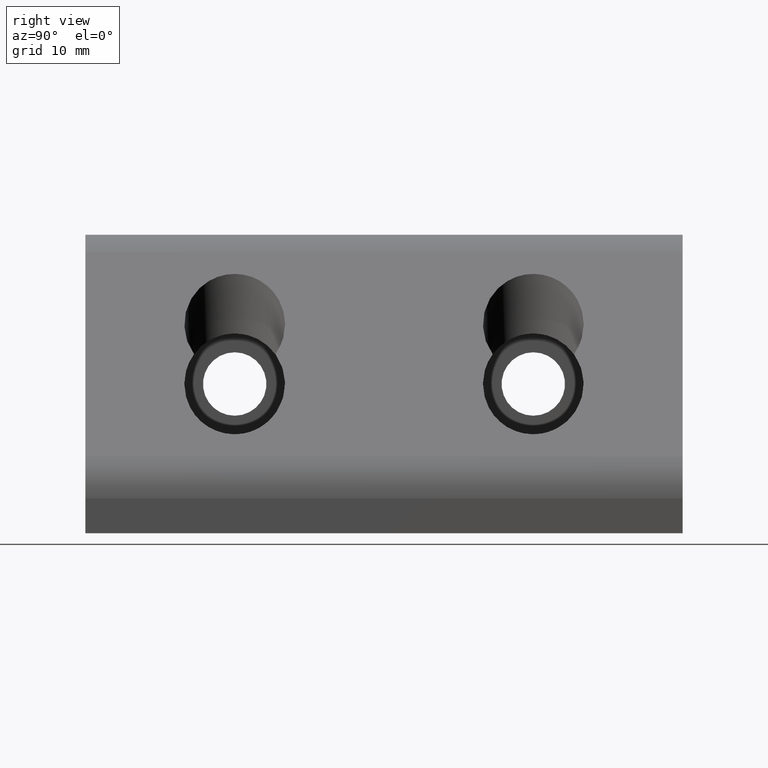
[diagram: clean part render]
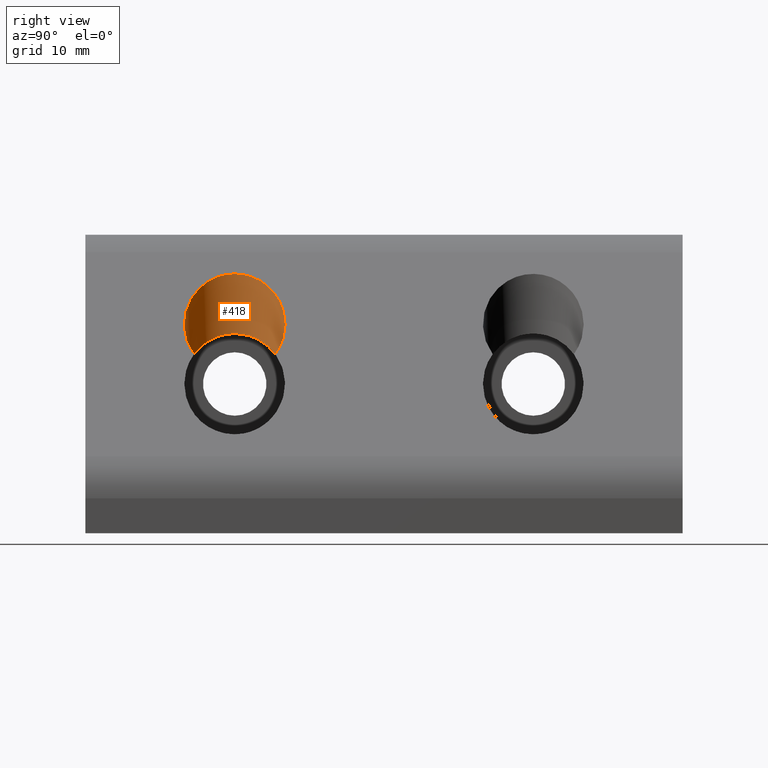
[diagram: same view with one face highlighted and labeled with its STEP entity id]
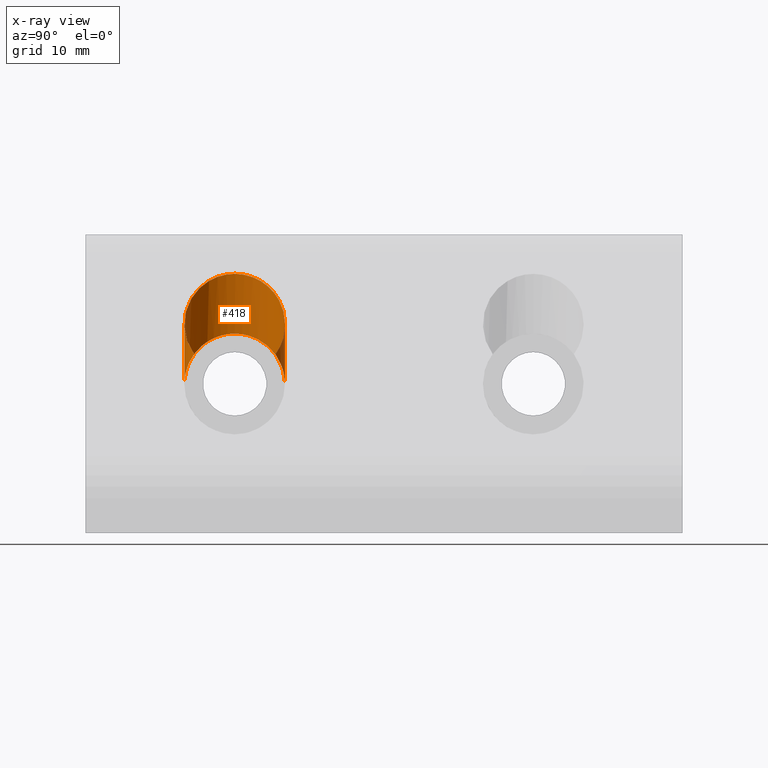
[diagram: x-ray of the same camera — body ghosted, the highlighted face saturated]
A machine part, right view. The second image highlights one B-rep face of the part: STEP entity #418.
The next image is the same camera in x-ray: the body ghosted, the highlighted face saturated — about 0% of this face is hidden behind the body in this view.
In plain terms, the highlighted cylindrical surface (partial cylindrical patch) has radius 6.75 mm, axis along (0, 0, -1).
Its self-contained STEP definition (entity closure, byte-faithful):
#45=FACE_OUTER_BOUND('',#70,.T.);
#70=EDGE_LOOP('',(#322,#323,#324,#325,#326));
#168=ELLIPSE('',#480,9.54594154601839,6.75000000000001);
#169=ELLIPSE('',#482,9.54594154601839,6.75000000000001);
#175=ELLIPSE('',#492,9.54594154601712,6.7499999999983);
#176=ELLIPSE('',#493,9.54594154600528,6.74999999998405);
#177=ELLIPSE('',#494,9.54594154601883,6.75000000000078);
#186=VERTEX_POINT('',#679);
#188=VERTEX_POINT('',#682);
#196=VERTEX_POINT('',#707);
#202=VERTEX_POINT('',#727);
#203=VERTEX_POINT('',#728);
#240=EDGE_CURVE('',#186,#196,#168,.T.);
#243=EDGE_CURVE('',#196,#188,#169,.T.);
#251=EDGE_CURVE('',#202,#203,#175,.T.);
#252=EDGE_CURVE('',#188,#202,#176,.T.);
#253=EDGE_CURVE('',#203,#186,#177,.T.);
#322=ORIENTED_EDGE('',*,*,#251,.F.);
#323=ORIENTED_EDGE('',*,*,#252,.F.);
#324=ORIENTED_EDGE('',*,*,#243,.F.);
#325=ORIENTED_EDGE('',*,*,#240,.F.);
#326=ORIENTED_EDGE('',*,*,#253,.F.);
#404=CYLINDRICAL_SURFACE('',#491,6.75);
#418=ADVANCED_FACE('',(#45),#404,.F.);
#480=AXIS2_PLACEMENT_3D('',#708,#570,#571);
#482=AXIS2_PLACEMENT_3D('',#712,#575,#576);
#491=AXIS2_PLACEMENT_3D('',#726,#594,#595);
#492=AXIS2_PLACEMENT_3D('',#729,#596,#597);
#493=AXIS2_PLACEMENT_3D('',#730,#598,#599);
#494=AXIS2_PLACEMENT_3D('',#731,#600,#601);
#570=DIRECTION('center_axis',(0.707106781186548,-3.48909435263061E-16,0.707106781186547));
#571=DIRECTION('ref_axis',(0.707106781186548,-1.71511242971904E-15,-0.707106781186548));
#575=DIRECTION('center_axis',(0.707106781186548,-3.48909435263061E-16,0.707106781186547));
#576=DIRECTION('ref_axis',(0.707106781186548,-1.71511242971904E-15,-0.707106781186548));
#594=DIRECTION('center_axis',(0.,0.,-1.));
#595=DIRECTION('ref_axis',(-1.,1.83697019872103E-16,0.));
#596=DIRECTION('center_axis',(-0.707106781186549,8.04270484236121E-16,-0.707106781186546));
#597=DIRECTION('ref_axis',(0.707106781186546,-6.86880464522745E-14,-0.707106781186549));
#598=DIRECTION('center_axis',(-0.707106781186548,8.0427048423612E-15,0.707106781186547));
#599=DIRECTION('ref_axis',(0.707106781186547,1.13829514808927E-12,0.707106781186548));
#600=DIRECTION('center_axis',(-0.707106781186548,-4.82562290541674E-15,
0.707106781186547));
#601=DIRECTION('ref_axis',(0.707106781186547,2.2503567120596E-14,0.707106781186548));
#679=CARTESIAN_POINT('',(20.,-13.25,20.));
#682=CARTESIAN_POINT('',(20.,-26.75,20.));
#707=CARTESIAN_POINT('',(13.25,-20.,26.75));
#708=CARTESIAN_POINT('Origin',(20.,-20.,20.));
#712=CARTESIAN_POINT('Origin',(20.,-20.,20.));
#726=CARTESIAN_POINT('Origin',(20.,-20.,28.00000001));
#727=CARTESIAN_POINT('',(24.,-25.4371407927329,24.));
#728=CARTESIAN_POINT('',(24.,-14.5628592072671,24.));
#729=CARTESIAN_POINT('Origin',(20.0000000000004,-19.9999999999983,27.9999999999997));
#730=CARTESIAN_POINT('Origin',(20.0000000000057,-20.000000000016,20.0000000000056));
#731=CARTESIAN_POINT('Origin',(19.9999999999999,-20.0000000000008,19.9999999999999));